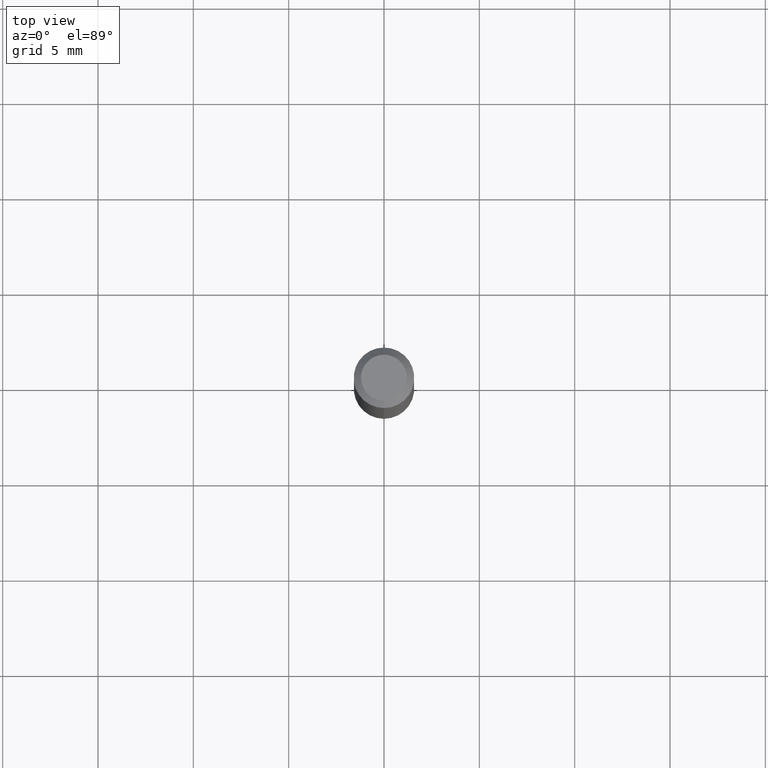
[diagram: clean part render]
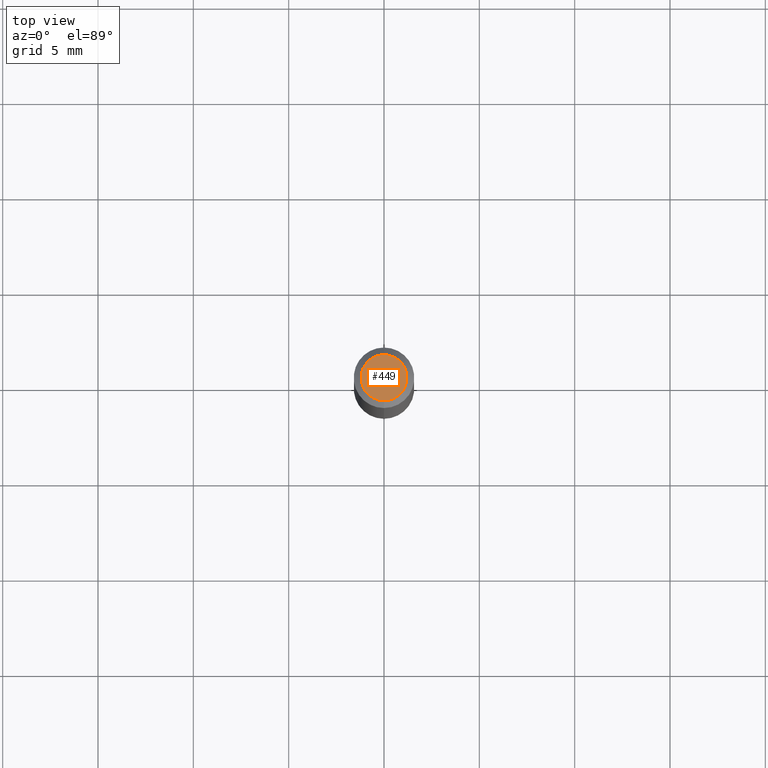
[diagram: same view with one face highlighted and labeled with its STEP entity id]
A machine part, top view. The second image highlights one B-rep face of the part: STEP entity #449.
In plain terms, the highlighted planar face has unit normal (0, -0, -1).
Its self-contained STEP definition (entity closure, byte-faithful):
#15 = CIRCLE ( 'NONE', #394, 0.04749999999999999362 ) ;
#52 = CARTESIAN_POINT ( 'NONE',  ( -3.773273898774340269E-16, -0.04749999999999999362, 1.569967744837605006E-16 ) ) ;
#124 = VERTEX_POINT ( 'NONE', #230 ) ;
#144 = DIRECTION ( 'NONE',  ( -6.982962677686266711E-15, -1.000000000000000000, 3.491604817585695240E-15 ) ) ;
#155 = DIRECTION ( 'NONE',  ( -2.445382581440065558E-29, 3.491604817585695240E-15, 1.000000000000000000 ) ) ;
#161 = AXIS2_PLACEMENT_3D ( 'NONE', #223, #499, #144 ) ;
#162 = ORIENTED_EDGE ( 'NONE', *, *, #505, .T. ) ;
#182 = EDGE_CURVE ( 'NONE', #354, #124, #15, .T. ) ;
#195 = CARTESIAN_POINT ( 'NONE',  ( 2.165252843946101879E-46, -3.091625547099952297E-32, -8.854454351560001883E-18 ) ) ;
#216 = CIRCLE ( 'NONE', #161, 0.04749999999999999362 ) ;
#217 = PLANE ( 'NONE',  #222 ) ;
#219 = DIRECTION ( 'NONE',  ( 6.982962677686265922E-15, 1.000000000000000000, -3.491604817585695634E-15 ) ) ;
#222 = AXIS2_PLACEMENT_3D ( 'NONE', #298, #368, #219 ) ;
#223 = CARTESIAN_POINT ( 'NONE',  ( 2.165252843946101879E-46, -3.091625547099952297E-32, -8.854454351560001883E-18 ) ) ;
#230 = CARTESIAN_POINT ( 'NONE',  ( 3.840629472727447874E-16, 0.04749999999999999362, -1.747056831868805136E-16 ) ) ;
#256 = EDGE_LOOP ( 'NONE', ( #162, #358 ) ) ;
#261 = FACE_OUTER_BOUND ( 'NONE', #256, .T. ) ;
#298 = CARTESIAN_POINT ( 'NONE',  ( 3.316907271900976096E-16, 0.04749999999999999362, -1.702784560111005104E-16 ) ) ;
#354 = VERTEX_POINT ( 'NONE', #52 ) ;
#358 = ORIENTED_EDGE ( 'NONE', *, *, #182, .T. ) ;
#368 = DIRECTION ( 'NONE',  ( 2.445382581440064717E-29, -3.491604817585695634E-15, -1.000000000000000000 ) ) ;
#394 = AXIS2_PLACEMENT_3D ( 'NONE', #195, #155, #463 ) ;
#449 = ADVANCED_FACE ( 'NONE', ( #261 ), #217, .F. ) ;
#463 = DIRECTION ( 'NONE',  ( -6.982962677686266711E-15, -1.000000000000000000, 3.491604817585695240E-15 ) ) ;
#499 = DIRECTION ( 'NONE',  ( -2.445382581440065558E-29, 3.491604817585695240E-15, 1.000000000000000000 ) ) ;
#505 = EDGE_CURVE ( 'NONE', #124, #354, #216, .T. ) ;